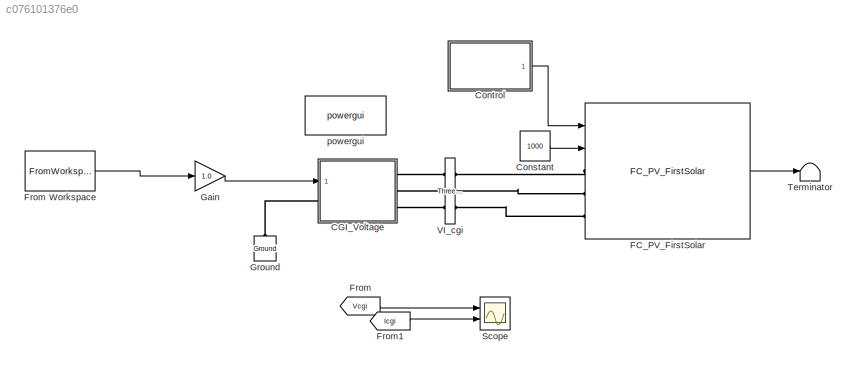
MODEL slx_c076101376e0
KIND model
CONFIG AbsTol = auto
CONFIG EnableMultiTasking = off
CONFIG FixedStep = auto
CONFIG MaxStep = auto
CONFIG MinStep = auto
CONFIG RelTol = 1e-3
CONFIG SampleTimeConstraint = Unconstrained
CONFIG Solver = VariableStepAuto
CONFIG SolverName = VariableStepAuto
CONFIG StartTime = 0.0
CONFIG StopTime = 10.0
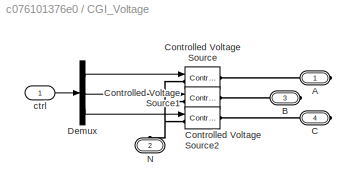
BLOCK [SubSystem] CGI_Voltage
  Ports = [1, 0, 0, 0, 0, 1, 3]
  RequestExecContextInheritance = off
BLOCK [PMIOPort] CGI_Voltage/A
  Side = Right
BLOCK [PMIOPort] CGI_Voltage/B
  Port = 3
  Side = Right
BLOCK [PMIOPort] CGI_Voltage/C
  Port = 4
  Side = Right
BLOCK [Reference] CGI_Voltage/Controlled Voltage Source  REF=powerlib/Electrical
Sources/Controlled Voltage Source
  Ports = [1, 0, 0, 0, 0, 1, 1]
  SourceBlock = powerlib/Electrical\nSources/Controlled Voltage Source
  SourceProductBaseCode = PS
  SourceType = Controlled Voltage Source
BLOCK [Reference] CGI_Voltage/Controlled Voltage Source1  REF=powerlib/Electrical
Sources/Controlled Voltage Source
  Ports = [1, 0, 0, 0, 0, 1, 1]
  SourceBlock = powerlib/Electrical\nSources/Controlled Voltage Source
  SourceProductBaseCode = PS
  SourceType = Controlled Voltage Source
BLOCK [Reference] CGI_Voltage/Controlled Voltage Source2  REF=powerlib/Electrical
Sources/Controlled Voltage Source
  Ports = [1, 0, 0, 0, 0, 1, 1]
  SourceBlock = powerlib/Electrical\nSources/Controlled Voltage Source
  SourceProductBaseCode = PS
  SourceType = Controlled Voltage Source
BLOCK [Demux] CGI_Voltage/Demux
  Outputs = 3
  Ports = [1, 3]
BLOCK [PMIOPort] CGI_Voltage/N
  NameLocation = right
  Port = 2
  Side = Left
BLOCK [Inport] CGI_Voltage/ctrl
BLOCK [Constant] Constant
  Value = 1000
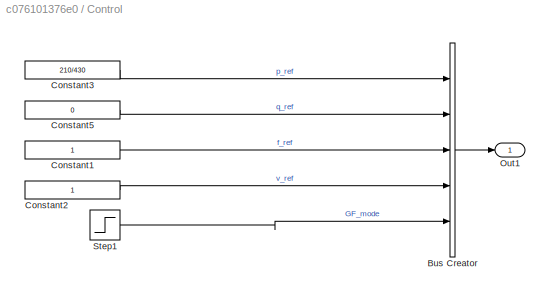
BLOCK [SubSystem] Control
  Ports = [0, 1]
  RequestExecContextInheritance = off
BLOCK [BusCreator] Control/Bus Creator
  DisplayOption = bar
  InheritFromInputs = on
  Inputs = 5
  Ports = [5, 1]
BLOCK [Constant] Control/Constant1
  SampleTime = -1
BLOCK [Constant] Control/Constant2
  SampleTime = -1
BLOCK [Constant] Control/Constant3
  SampleTime = -1
  Value = 210/430
BLOCK [Constant] Control/Constant5
  SampleTime = -1
  Value = 0
BLOCK [Outport] Control/Out1
BLOCK [Step] Control/Step1
  Time = 1000
BLOCK [Reference] FC_PV_FirstSolar  REF=libFC_PV/FC_PV_FirstSolar
  Ports = [2, 1, 0, 0, 0, 3]
  SourceBlock = libFC_PV/FC_PV_FirstSolar
BLOCK [From] From
  GotoTag = Vcgi
  TagVisibility = global
BLOCK [FromWorkspace] From Workspace
  SampleTime = Ts
  VariableName = measU3
BLOCK [From] From1
  GotoTag = Icgi
  TagVisibility = global
BLOCK [Gain] Gain
  Gain = 1.0
BLOCK [Reference] Ground  REF=powerlib/Elements/Ground
  NameLocation = right
  Ports = [0, 0, 0, 0, 0, 1]
  SourceBlock = powerlib/Elements/Ground
  SourceProductBaseCode = PS
  SourceType = Ground
BLOCK [Scope] Scope
  Floating = off
  NumInputPorts = 2
  Ports = [2]
  ScopeSpecificationString = Simulink.scopes.TimeScopeBlockCfg('CurrentConfiguration', extmgr.ConfigurationSet(extmgr.Configuration('Core','General UI',true),extmgr.Configuration('Core','Source UI',true),extmgr.Configuration('Sources','WiredSimulink',true,'DataLoggingVariableName','ScopeDataCGI','DataLogging',true,'DataLoggingDecimateData',true,'DataLoggingDecimation','20','DataLoggingSaveFormat','StructureWithTime'),extmgr.C...<+2221ch>
BLOCK [Terminator] Terminator
BLOCK [Reference] VI_cgi  REF=powerlib/Measurements/Three-Phase
V-I Measurement
  Ports = [0, 0, 0, 0, 0, 3, 3]
  SourceBlock = powerlib/Measurements/Three-Phase\nV-I Measurement
  SourceProductBaseCode = PS
  SourceType = Three-Phase VI Measurement
BLOCK [Reference] powergui  REF=powerlib/powergui
  Ports = []
  Priority = 1
  SourceBlock = powerlib/powergui
  SourceProductBaseCode = PS
  SourceType = PSB option menu block
LINE CGI_Voltage/Demux:1 -> CGI_Voltage/Controlled Voltage Source:1
LINE CGI_Voltage/Demux:2 -> CGI_Voltage/Controlled Voltage Source1:1
LINE CGI_Voltage/Demux:3 -> CGI_Voltage/Controlled Voltage Source2:1
LINE CGI_Voltage/ctrl:1 -> CGI_Voltage/Demux:1
LINE Constant:1 -> FC_PV_FirstSolar:2
LINE Control/Bus Creator:1 -> Control/Out1:1
LINE Control/Constant1:1 -> Control/Bus Creator:3
LINE Control/Constant2:1 -> Control/Bus Creator:4
LINE Control/Constant3:1 -> Control/Bus Creator:1
LINE Control/Constant5:1 -> Control/Bus Creator:2
LINE Control/Step1:1 -> Control/Bus Creator:5
LINE Control:1 -> FC_PV_FirstSolar:1
LINE FC_PV_FirstSolar:1 -> Terminator:1
LINE From Workspace:1 -> Gain:1
LINE From1:1 -> Scope:2
LINE From:1 -> Scope:1
LINE Gain:1 -> CGI_Voltage:1
PLINE CGI_Voltage/A:RConn1 -- CGI_Voltage/Controlled Voltage Source:RConn1
PLINE CGI_Voltage/B:RConn1 -- CGI_Voltage/Controlled Voltage Source1:RConn1
PLINE CGI_Voltage/C:RConn1 -- CGI_Voltage/Controlled Voltage Source2:RConn1
PNET net1: CGI_Voltage/Controlled Voltage Source1:LConn1 -- CGI_Voltage/Controlled Voltage Source2:LConn1 -- CGI_Voltage/Controlled Voltage Source:LConn1 -- CGI_Voltage/N:RConn1
PLINE CGI_Voltage:LConn1 -- Ground:LConn1
PLINE CGI_Voltage:RConn1 -- VI_cgi:LConn1
PLINE CGI_Voltage:RConn2 -- VI_cgi:LConn2
PLINE CGI_Voltage:RConn3 -- VI_cgi:LConn3
PLINE FC_PV_FirstSolar:LConn1 -- VI_cgi:RConn1
PLINE FC_PV_FirstSolar:LConn2 -- VI_cgi:RConn2
PLINE FC_PV_FirstSolar:LConn3 -- VI_cgi:RConn3
note: PNET lines group multi-terminal physical nets as a canonical sorted terminal list (undirected conserving connections); 2-terminal nets keep the pairwise PLINE form
